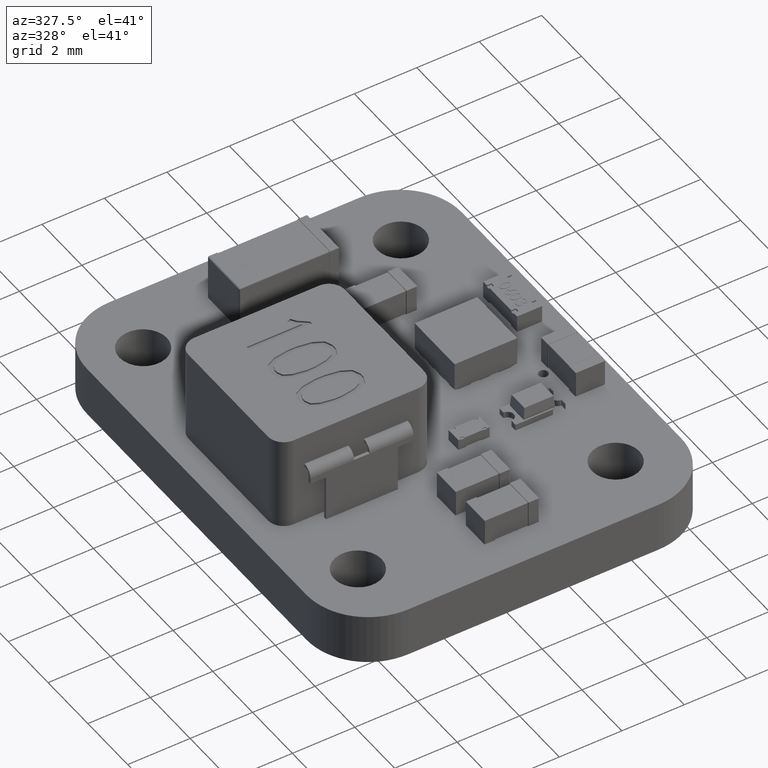
[diagram: clean part render]
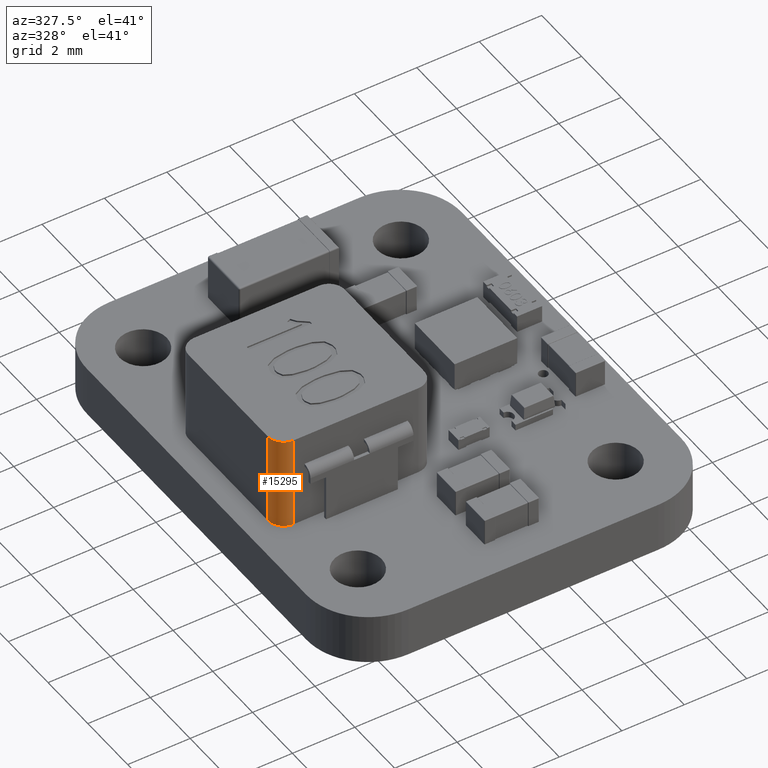
[diagram: same view with one face highlighted and labeled with its STEP entity id]
A machine part, auxiliary view. The second image highlights one B-rep face of the part: STEP entity #15295.
In plain terms, the highlighted cylindrical surface (edge-blend (fillet) strip) has radius 0.5 mm, axis along (-0, 0, 1).
Its self-contained STEP definition (entity closure, byte-faithful):
#13343 = VERTEX_POINT('',#13344);
#13344 = CARTESIAN_POINT('',(-5.421010862428E-17,3.,-0.5));
#13396 = VERTEX_POINT('',#13397);
#13397 = CARTESIAN_POINT('',(-0.5,3.,7.047314121156E-16));
#13403 = EDGE_CURVE('',#13343,#13396,#13404,.T.);
#13404 = CIRCLE('',#13405,0.5);
#13405 = AXIS2_PLACEMENT_3D('',#13406,#13407,#13408);
#13406 = CARTESIAN_POINT('',(-0.5,3.,-0.5));
#13407 = DIRECTION('',(0.,-1.,0.));
#13408 = DIRECTION('',(0.,0.,1.));
#14470 = EDGE_CURVE('',#13343,#14471,#14473,.T.);
#14471 = VERTEX_POINT('',#14472);
#14472 = CARTESIAN_POINT('',(-5.421010862428E-17,0.,-0.5));
#14473 = LINE('',#14474,#14475);
#14474 = CARTESIAN_POINT('',(-1.387778780781E-16,0.,-0.5));
#14475 = VECTOR('',#14476,1.);
#14476 = DIRECTION('',(-0.,-1.,-0.));
#14527 = VERTEX_POINT('',#14528);
#14528 = CARTESIAN_POINT('',(-0.5,0.,1.235990476633E-16));
#14534 = EDGE_CURVE('',#14527,#13396,#14535,.T.);
#14535 = LINE('',#14536,#14537);
#14536 = CARTESIAN_POINT('',(-0.5,0.,1.387778780781E-16));
#14537 = VECTOR('',#14538,1.);
#14538 = DIRECTION('',(0.,1.,0.));
#15295 = ADVANCED_FACE('',(#15296),#15308,.T.);
#15296 = FACE_BOUND('',#15297,.T.);
#15297 = EDGE_LOOP('',(#15298,#15299,#15300,#15307));
#15298 = ORIENTED_EDGE('',*,*,#13403,.T.);
#15299 = ORIENTED_EDGE('',*,*,#14534,.F.);
#15300 = ORIENTED_EDGE('',*,*,#15301,.T.);
#15301 = EDGE_CURVE('',#14527,#14471,#15302,.T.);
#15302 = CIRCLE('',#15303,0.5);
#15303 = AXIS2_PLACEMENT_3D('',#15304,#15305,#15306);
#15304 = CARTESIAN_POINT('',(-0.5,0.,-0.5));
#15305 = DIRECTION('',(0.,1.,0.));
#15306 = DIRECTION('',(0.,-0.,1.));
#15307 = ORIENTED_EDGE('',*,*,#14470,.F.);
#15308 = CYLINDRICAL_SURFACE('',#15309,0.5);
#15309 = AXIS2_PLACEMENT_3D('',#15310,#15311,#15312);
#15310 = CARTESIAN_POINT('',(-0.5,0.,-0.5));
#15311 = DIRECTION('',(0.,1.,0.));
#15312 = DIRECTION('',(0.,-0.,1.));